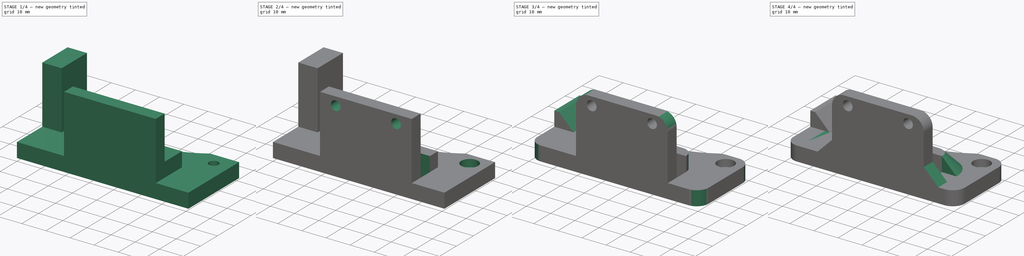
[diagram: build sequence overview — one tinted view per stage of 4, left to right]
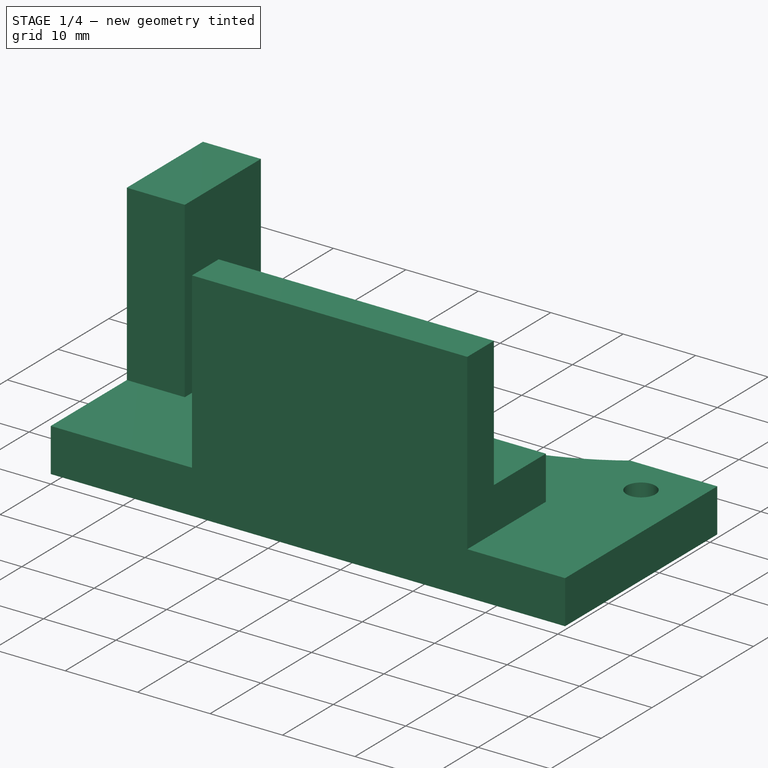
[diagram: stage 1 of 4 — iso view after this stage's code; geometry added in this stage tinted green]
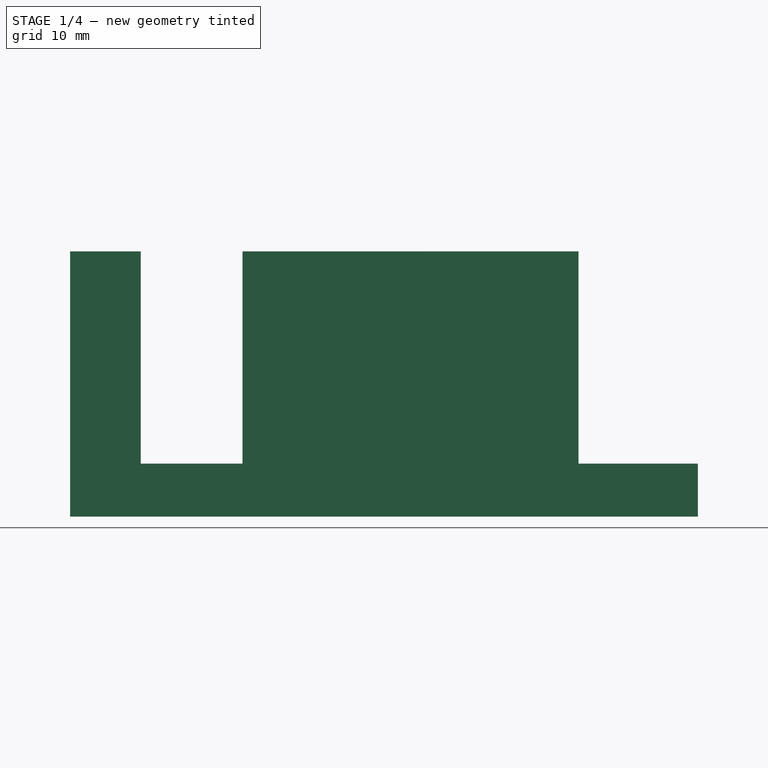
[diagram: stage 1 of 4 — front view after this stage's code; geometry added in this stage tinted green]
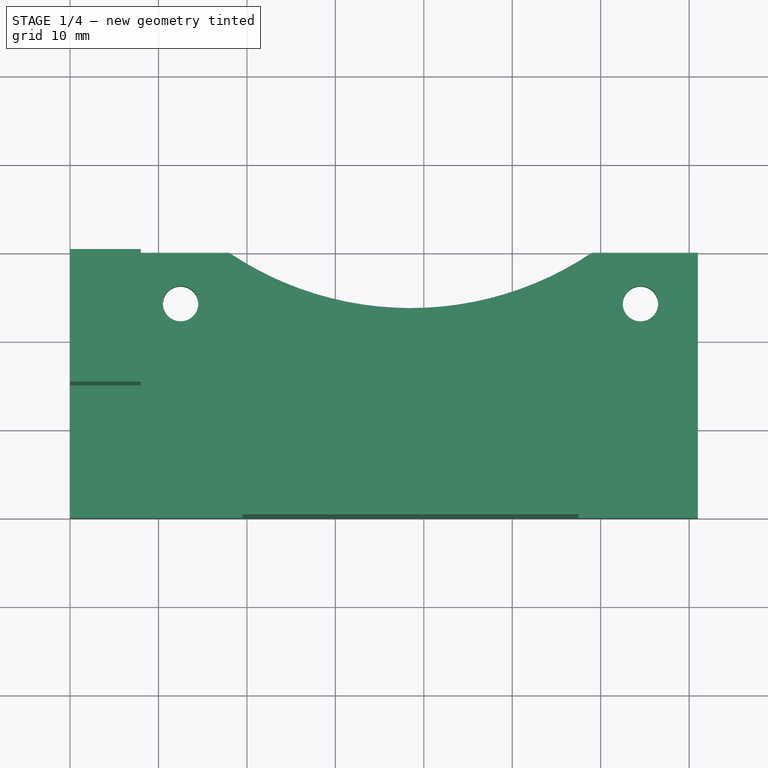
[diagram: stage 1 of 4 — top view after this stage's code; geometry added in this stage tinted green]
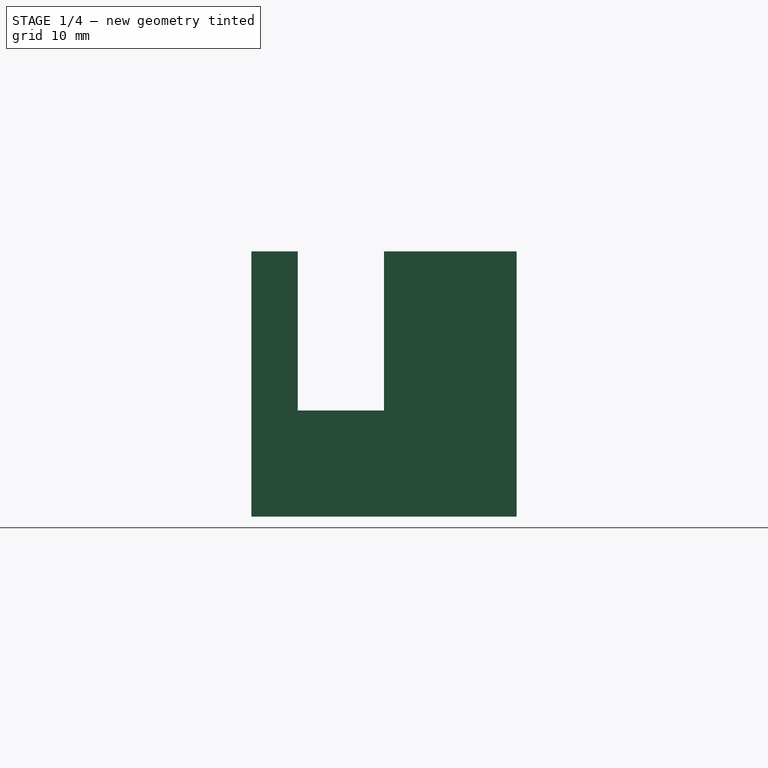
[diagram: stage 1 of 4 — right view after this stage's code; geometry added in this stage tinted green]
FCSTD DOCUMENT  (FreeCAD 0.17R13662 (Git))
Label: y_belt_mount
License: CreativeCommons Attribution-ShareAlike
LicenseURL: http://creativecommons.org/licenses/by-sa/4.0/
objects: Sketcher::SketchObject×8, PartDesign::Pocket×6, PartDesign::Fillet×2, PartDesign::Chamfer×2, Part::FeaturePython×1, PartDesign::Pad×1, PartDesign::Body×1
note: 28 computed .brp shape members not serialized (recipe doc carries the construction recipe); baked Part::Feature solids carry a one-line shape summary decoded from their .brp

FEATURE [Sketcher::SketchObject] Sketch
  MapMode = 5
  Support = -> [XY_Plane]
  sketch-geometry (10):
    g0: LineSegment StartX=71 StartY=0 StartZ=0 EndX=71 EndY=30 EndZ=0
    g1: LineSegment StartX=71 StartY=30 StartZ=0 EndX=59 EndY=30 EndZ=0
    g2: LineSegment [constr] StartX=59 StartY=30 StartZ=0 EndX=18 EndY=30 EndZ=0
    g3: LineSegment StartX=18 StartY=30 StartZ=0 EndX=0 EndY=30 EndZ=0
    g4: LineSegment StartX=0 StartY=30 StartZ=0 EndX=0 EndY=0 EndZ=0
    g5: LineSegment StartX=0 StartY=0 StartZ=0 EndX=71 EndY=0 EndZ=0
    g6: ArcOfCircle CenterX=38.5 CenterY=60.501 CenterZ=0 NormalX=0 NormalY=0 NormalZ=1 AngleXU=0 Radius=36.75 StartAngle=4.12063 EndAngle=5.30415
    g7: Circle CenterX=12.5 CenterY=24.25 CenterZ=0 NormalX=0 NormalY=0 NormalZ=1 AngleXU=0 Radius=2
    g8: Circle CenterX=64.5 CenterY=24.25 CenterZ=0 NormalX=0 NormalY=0 NormalZ=1 AngleXU=0 Radius=2
    g9: LineSegment [constr] StartX=12.5 StartY=24.25 StartZ=0 EndX=64.5 EndY=24.25 EndZ=0
  constraints (29):
    c: Coincident(g0,g1)
    c: Coincident(g1,g2)
    c: Coincident(g2,g3)
    c: Coincident(g4,g5)
    c: Coincident(g0,g5)
    c: Coincident(g4,g-1)
    c: Vertical(g4)
    c: Vertical(g0)
    c: Horizontal(g5)
    c: Horizontal(g1)
    c: Horizontal(g2)
    c: Horizontal(g3)
    c: DistanceX(g5,g5) = 71
    c: DistanceX(g1,g1) = 12
    c: Coincident(g1,g6)
    c: Coincident(g2,g6)
    c: Radius(g6) = 36.75
    c: DistanceY(g0,g0) = 30
    c: Equal(g4,g0)
    c: Coincident(g3,g4)
    c: DistanceX(g2,g2) = 41
    c: DistanceX(g7) = 12.5
    c: DistanceY(g7) = 24.25
    c: Coincident(g8,g9)
    c: Coincident(g7,g9)
    c: Horizontal(g9)
    c: DistanceX(g9,g9) = 52
    c: Equal(g7,g8)
    c: Radius(g8) = 2
FEATURE [PartDesign::Pad] Pad
  Length = 30
  Length2 = 100
  Profile = -> Sketch
  Type = 0
FEATURE [Sketcher::SketchObject] Sketch001
  MapMode = 5
  Placement = pos=(0,0,30) rot=(0,0,1;0rad)
  Support = -> [Pad]
  sketch-geometry (10):
    g0: LineSegment StartX=8 StartY=30 StartZ=0 EndX=71 EndY=30 EndZ=0
    g1: LineSegment StartX=71 StartY=30 StartZ=0 EndX=71 EndY=0 EndZ=0
    g2: LineSegment StartX=71 StartY=0 StartZ=0 EndX=57.5 EndY=0 EndZ=0
    g3: LineSegment StartX=19.5 StartY=0 StartZ=0 EndX=0 EndY=0 EndZ=0
    g4: LineSegment StartX=8 StartY=30 StartZ=0 EndX=8 EndY=15 EndZ=0
    g5: LineSegment StartX=8 StartY=15 StartZ=0 EndX=0 EndY=15 EndZ=0
    g6: LineSegment StartX=0 StartY=15 StartZ=0 EndX=0 EndY=0 EndZ=0
    g7: LineSegment StartX=19.5 StartY=0 StartZ=0 EndX=19.5 EndY=15.5 EndZ=0
    g8: LineSegment StartX=19.5 StartY=15.5 StartZ=0 EndX=57.5 EndY=15.5 EndZ=0
    g9: LineSegment StartX=57.5 StartY=15.5 StartZ=0 EndX=57.5 EndY=0 EndZ=0
  constraints (29):
    c: Coincident(g0,g1)
    c: Coincident(g1,g2)
    c: Horizontal(g3)
    c: Horizontal(g2)
    c: Horizontal(g0)
    c: Vertical(g1)
    c: DistanceX(g0) = 71
    c: DistanceY(g0) = 30
    c: Coincident(g4,g5)
    c: Coincident(g5,g6)
    c: Coincident(g3,g6)
    c: Coincident(g3,g-1)
    c: Vertical(g6)
    c: Vertical(g4)
    c: Horizontal(g5)
    c: DistanceY(g6,g6) = 15
    c: DistanceX(g5,g5) = 8
    c: Coincident(g0,g4)
    c: DistanceX(g3,g3) = 19.5
    c: PointOnObject(g1,g-1)
    c: DistanceX(g2,g2) = 13.5
    c: Coincident(g7,g8)
    c: Coincident(g8,g9)
    c: Coincident(g2,g9)
    c: Coincident(g3,g7)
    c: Vertical(g9)
    c: Vertical(g7)
    c: Horizontal(g8)
    c: DistanceY(g7,g7) = 15.5
FEATURE [PartDesign::Pocket] Pocket
  BaseFeature = -> Pad
  Length = 24
  Length2 = 100
  Profile = -> Sketch001
  Type = 0
FEATURE [Sketcher::SketchObject] Sketch003
  MapMode = 5
  Placement = pos=(0,0,30) rot=(0,0,1;0rad)
  Support = -> [Pocket]
  sketch-geometry (4):
    g0: LineSegment StartX=13.5 StartY=21 StartZ=0 EndX=63.5 EndY=21 EndZ=0
    g1: LineSegment StartX=63.5 StartY=21 StartZ=0 EndX=63.5 EndY=5.25 EndZ=0
    g2: LineSegment StartX=63.5 StartY=5.25 StartZ=0 EndX=13.5 EndY=5.25 EndZ=0
    g3: LineSegment StartX=13.5 StartY=5.25 StartZ=0 EndX=13.5 EndY=21 EndZ=0
  constraints (12):
    c: Coincident(g0,g1)
    c: Coincident(g1,g2)
    c: Coincident(g2,g3)
    c: Coincident(g3,g0)
    c: Horizontal(g0)
    c: Horizontal(g2)
    c: Vertical(g1)
    c: Vertical(g3)
    c: DistanceX(g2) = 13.5
    c: DistanceY(g2) = 5.25
    c: DistanceY(g3,g3) = 15.75
    c: DistanceX(g0,g0) = 50
FEATURE [PartDesign::Pocket] Pocket001
  BaseFeature = -> Pocket
  Length = 18
  Length2 = 100
  Profile = -> Sketch003
  Type = 0
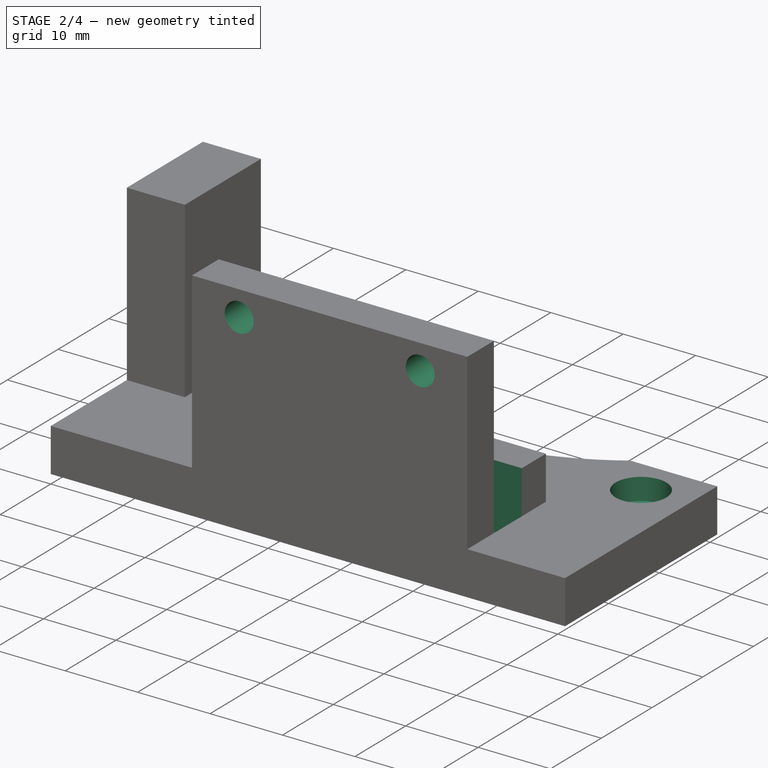
[diagram: stage 2 of 4 — iso view after this stage's code; geometry added in this stage tinted green]
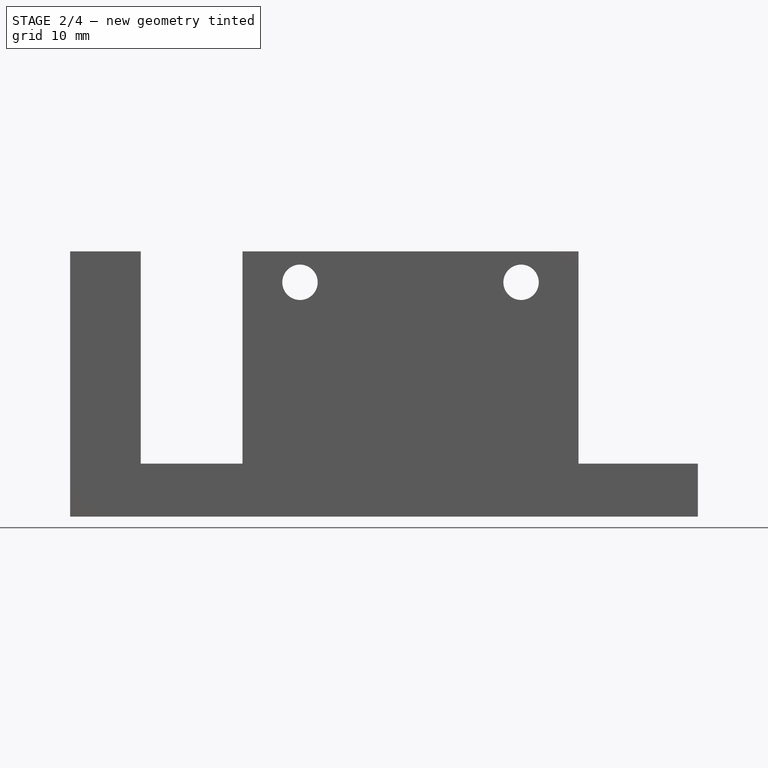
[diagram: stage 2 of 4 — front view after this stage's code; geometry added in this stage tinted green]
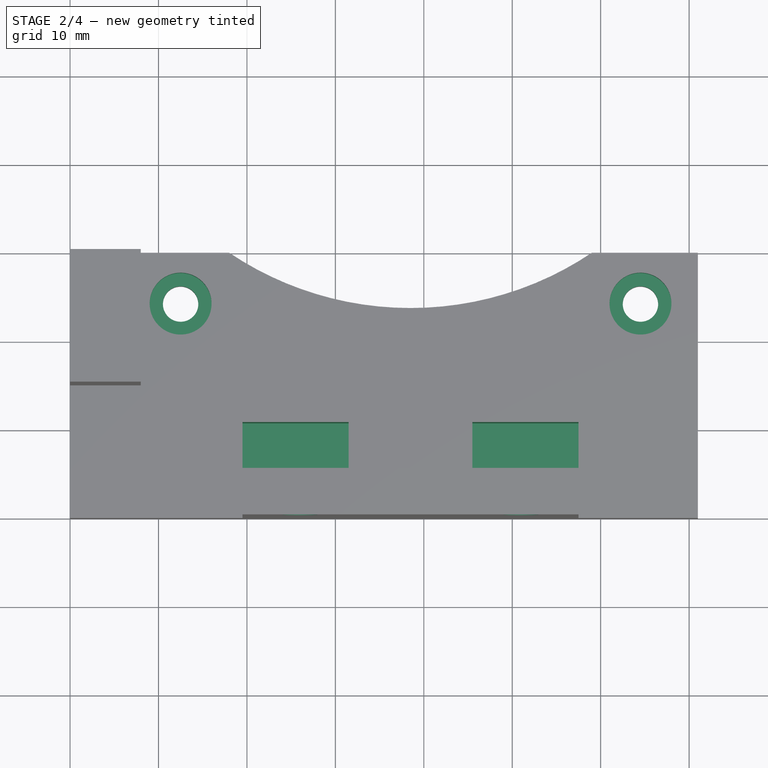
[diagram: stage 2 of 4 — top view after this stage's code; geometry added in this stage tinted green]
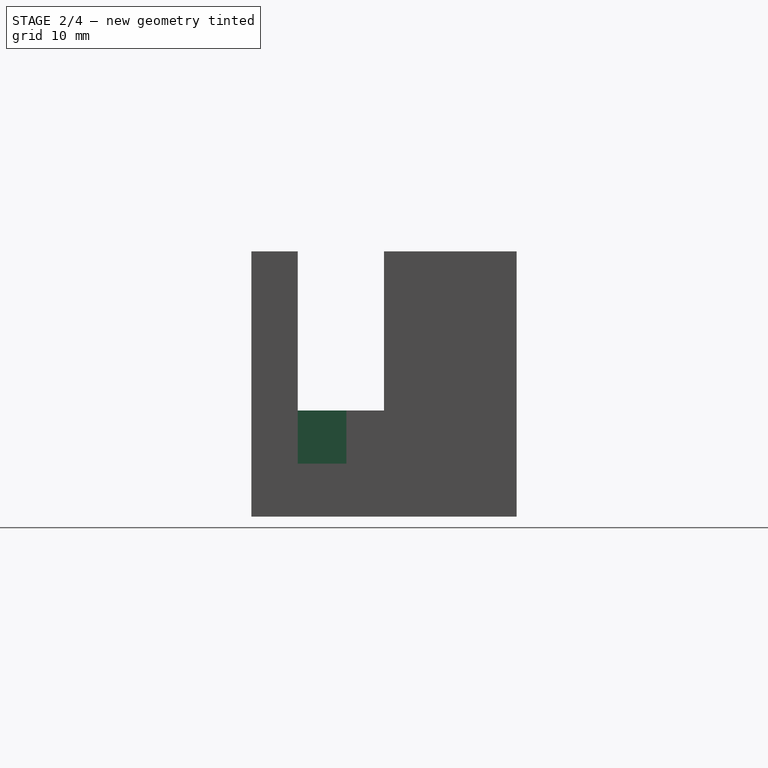
[diagram: stage 2 of 4 — right view after this stage's code; geometry added in this stage tinted green]
FEATURE [Sketcher::SketchObject] Sketch002
  MapMode = 5
  Placement = pos=(0,0,12) rot=(0,0,1;0rad)
  Support = -> [Pocket001]
FEATURE [Sketcher::SketchObject] Sketch004
  MapMode = 5
  Placement = pos=(0,0,12) rot=(0,0,1;0rad)
  Support = -> [Pocket001]
  sketch-geometry (8):
    g0: LineSegment StartX=31.5 StartY=5.25 StartZ=0 EndX=19.5 EndY=5.25 EndZ=0
    g1: LineSegment StartX=19.5 StartY=5.25 StartZ=0 EndX=19.5 EndY=10.75 EndZ=0
    g2: LineSegment StartX=19.5 StartY=10.75 StartZ=0 EndX=31.5 EndY=10.75 EndZ=0
    g3: LineSegment StartX=31.5 StartY=10.75 StartZ=0 EndX=31.5 EndY=5.25 EndZ=0
    g4: LineSegment StartX=45.5 StartY=5.25 StartZ=0 EndX=57.5 EndY=5.25 EndZ=0
    g5: LineSegment StartX=57.5 StartY=5.25 StartZ=0 EndX=57.5 EndY=10.75 EndZ=0
    g6: LineSegment StartX=57.5 StartY=10.75 StartZ=0 EndX=45.5 EndY=10.75 EndZ=0
    g7: LineSegment StartX=45.5 StartY=10.75 StartZ=0 EndX=45.5 EndY=5.25 EndZ=0
  constraints (24):
    c: Coincident(g0,g1)
    c: Coincident(g1,g2)
    c: Coincident(g2,g3)
    c: Coincident(g3,g0)
    c: Horizontal(g0)
    c: Horizontal(g2)
    c: Vertical(g1)
    c: Vertical(g3)
    c: Coincident(g4,g5)
    c: Coincident(g5,g6)
    c: Coincident(g6,g7)
    c: Coincident(g7,g4)
    c: Horizontal(g4)
    c: Horizontal(g6)
    c: Vertical(g5)
    c: Vertical(g7)
    c: DistanceX(g0) = 19.5
    c: DistanceY(g0) = 5.25
    c: DistanceY(g1,g1) = 5.5
    c: DistanceX(g2,g2) = 12
    c: PointOnObject(g0,g4)
    c: DistanceX(g0,g4) = 14
    c: Equal(g7,g3)
    c: Equal(g6,g2)
FEATURE [PartDesign::Pocket] Pocket002
  BaseFeature = -> Pocket001
  Length = 9
  Length2 = 100
  Profile = -> Sketch004
  Type = 0
FEATURE [Sketcher::SketchObject] Sketch005
  MapMode = 5
  Placement = pos=(0,0,0) rot=(1,0,0;1.5708rad)
  Support = -> [Pocket002]
  sketch-geometry (3):
    g0: Circle CenterX=26 CenterY=26.5 CenterZ=0 NormalX=0 NormalY=0 NormalZ=1 AngleXU=0 Radius=2
    g1: LineSegment [constr] StartX=26 StartY=26.5 StartZ=0 EndX=51 EndY=26.5 EndZ=0
    g2: Circle CenterX=51 CenterY=26.5 CenterZ=0 NormalX=0 NormalY=0 NormalZ=1 AngleXU=0 Radius=2
  constraints (8):
    c: DistanceX(g0) = 26
    c: DistanceY(g0) = 26.5
    c: Coincident(g0,g1)
    c: Horizontal(g1)
    c: Coincident(g1,g2)
    c: DistanceX(g1,g1) = 25
    c: Radius(g2) = 2
    c: Equal(g2,g0)
FEATURE [PartDesign::Pocket] Pocket003
  BaseFeature = -> Pocket002
  Length = 5
  Length2 = 100
  Profile = -> Sketch005
  Type = 1
FEATURE [Sketcher::SketchObject] Sketch006
  MapMode = 5
  Placement = pos=(0,0,6) rot=(0,0,1;0rad)
  Support = -> [Pocket003]
  sketch-geometry (2):
    g0: Circle CenterX=12.5 CenterY=24.25 CenterZ=0 NormalX=0 NormalY=0 NormalZ=1 AngleXU=0 Radius=3.5
    g1: Circle CenterX=64.5 CenterY=24.25 CenterZ=0 NormalX=0 NormalY=0 NormalZ=1 AngleXU=0 Radius=3.5
  constraints (6):
    c: DistanceX(g1) = 64.5
    c: DistanceY(g1) = 24.25
    c: Radius(g1) = 3.5
    c: DistanceX(g0,g1) = 52
    c: DistanceY(g0,g1) = 0
    c: Equal(g0,g1)
FEATURE [PartDesign::Pocket] Pocket004
  BaseFeature = -> Pocket003
  Length = 3
  Length2 = 100
  Profile = -> Sketch006
  Type = 0
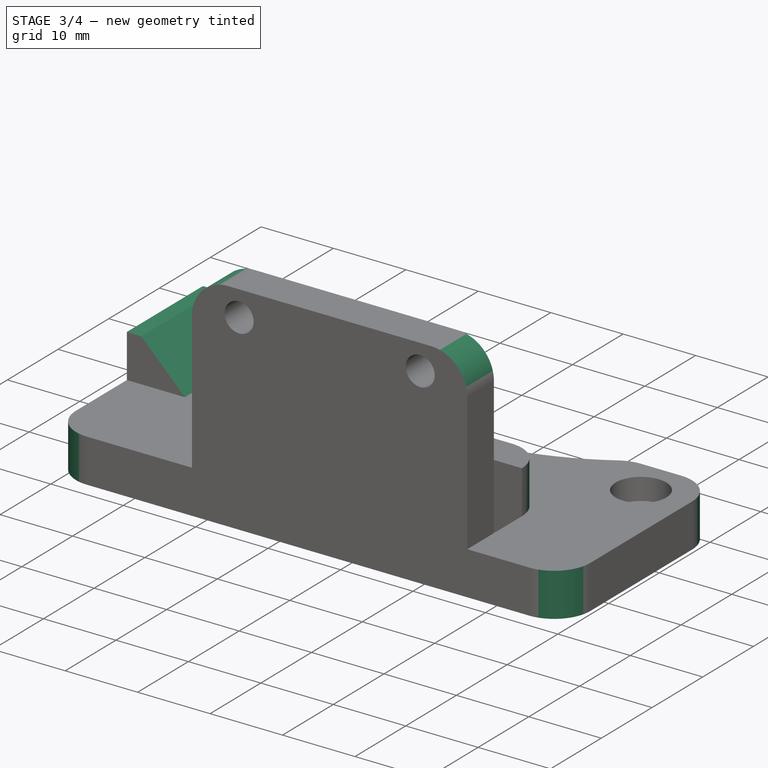
[diagram: stage 3 of 4 — iso view after this stage's code; geometry added in this stage tinted green]
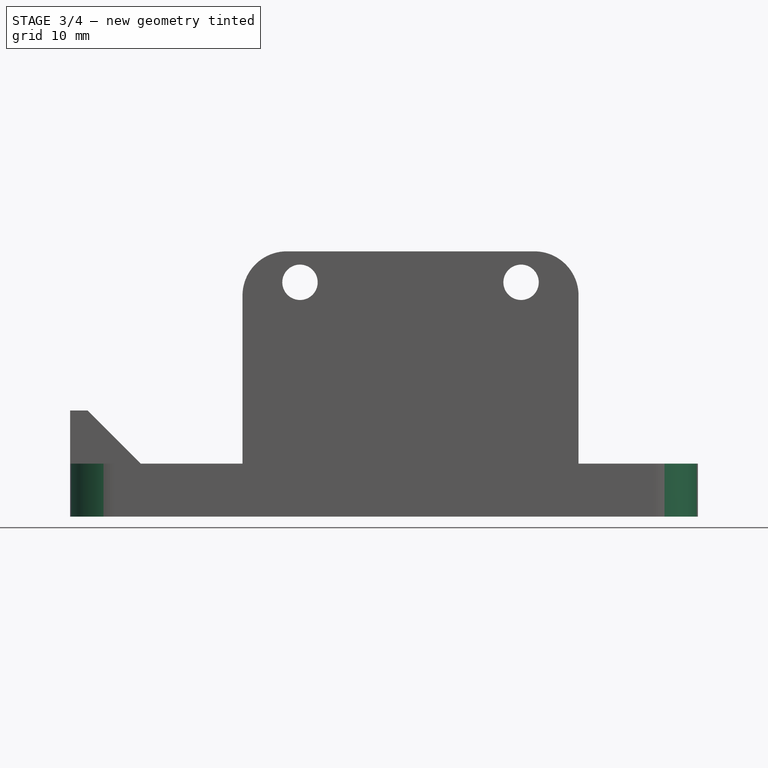
[diagram: stage 3 of 4 — front view after this stage's code; geometry added in this stage tinted green]
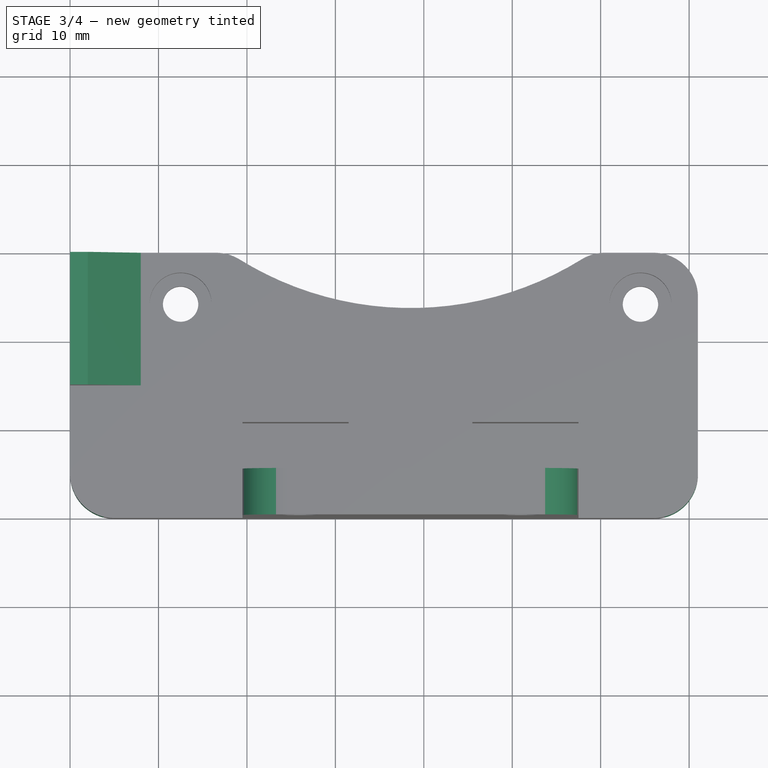
[diagram: stage 3 of 4 — top view after this stage's code; geometry added in this stage tinted green]
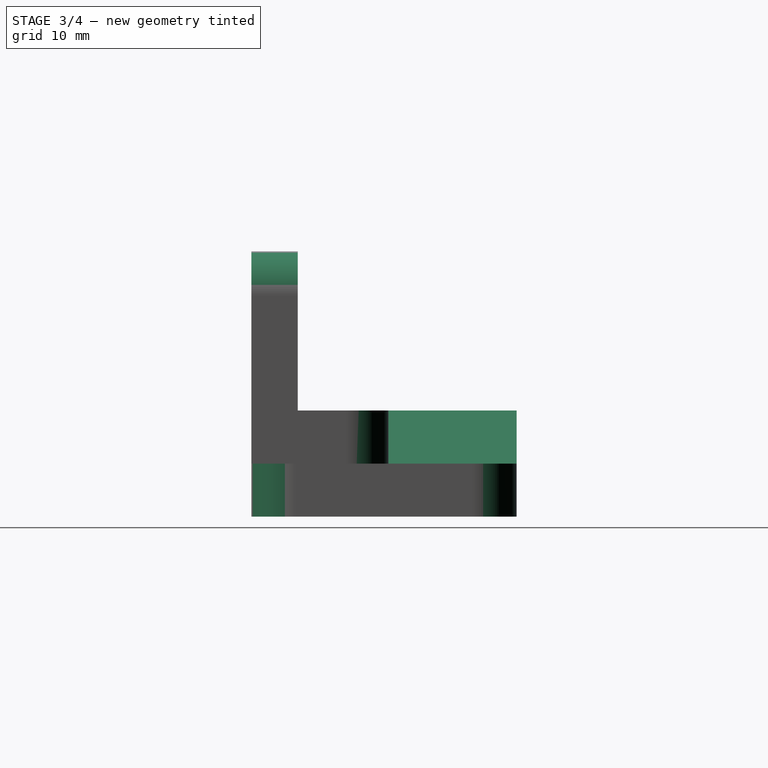
[diagram: stage 3 of 4 — right view after this stage's code; geometry added in this stage tinted green]
FEATURE [Sketcher::SketchObject] Sketch007
  MapMode = 5
  Placement = pos=(0,15,0) rot=(1,0,0;1.5708rad)
  Support = -> [Pocket004]
  sketch-geometry (5):
    g0: LineSegment StartX=8 StartY=6 StartZ=0 EndX=2 EndY=12 EndZ=0
    g1: LineSegment StartX=0 StartY=12 StartZ=0 EndX=0 EndY=30 EndZ=0
    g2: LineSegment StartX=0 StartY=30 StartZ=0 EndX=8 EndY=30 EndZ=0
    g3: LineSegment StartX=8 StartY=30 StartZ=0 EndX=8 EndY=6 EndZ=0
    g4: LineSegment StartX=2 StartY=12 StartZ=0 EndX=0 EndY=12 EndZ=0
  constraints (15):
    c: Coincident(g1,g2)
    c: Coincident(g2,g3)
    c: Coincident(g0,g3)
    c: Vertical(g3)
    c: Vertical(g1)
    c: Horizontal(g2)
    c: DistanceX(g0) = 8
    c: DistanceY(g0) = 6
    c: Angle(g0) = 2.35619
    c: DistanceY(g1,g1) = 18
    c: DistanceY(g0,g0) = 6
    c: Coincident(g0,g4)
    c: Coincident(g1,g4)
    c: Horizontal(g4)
    c: PointOnObject(g1,g-2)
FEATURE [PartDesign::Pocket] Pocket005
  BaseFeature = -> Pocket004
  Length = 5
  Length2 = 100
  Profile = -> Sketch007
  Type = 1
FEATURE [PartDesign::Fillet] Fillet
  Base = -> Pocket005 [Edge14,Edge38,Edge44,Edge6,Edge37,Edge49,Edge59]
  BaseFeature = -> Pocket005
  Radius = 5
FEATURE [PartDesign::Fillet] Fillet001
  Base = -> Fillet [Edge79,Edge73]
  BaseFeature = -> Fillet
  Radius = 4.74
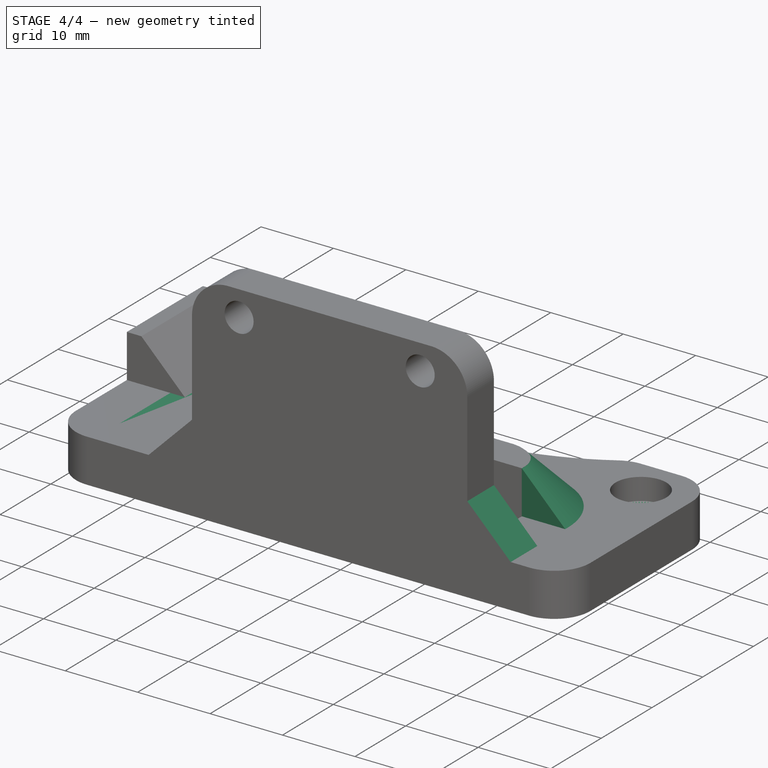
[diagram: stage 4 of 4 — iso view after this stage's code; geometry added in this stage tinted green]
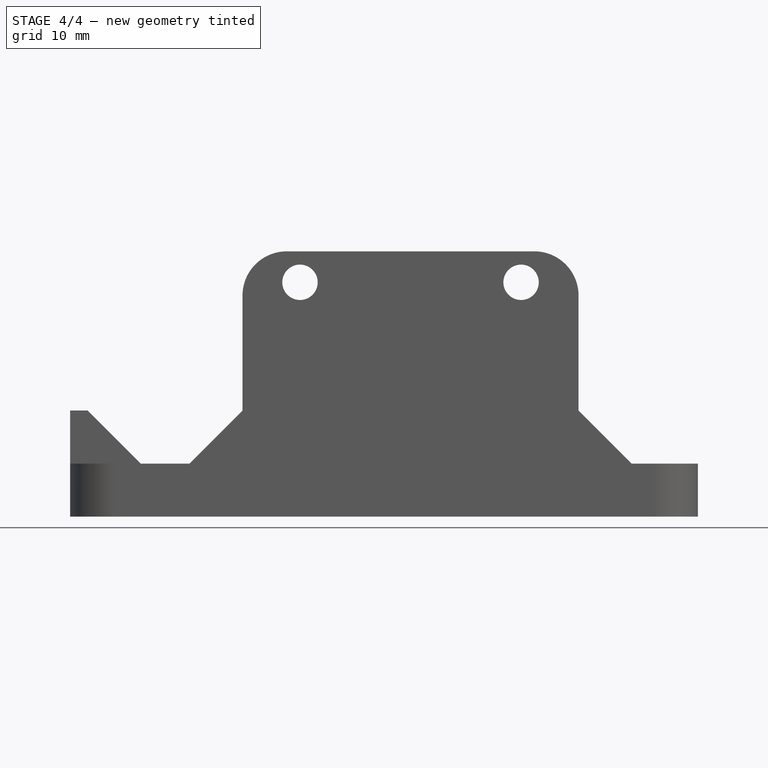
[diagram: stage 4 of 4 — front view after this stage's code; geometry added in this stage tinted green]
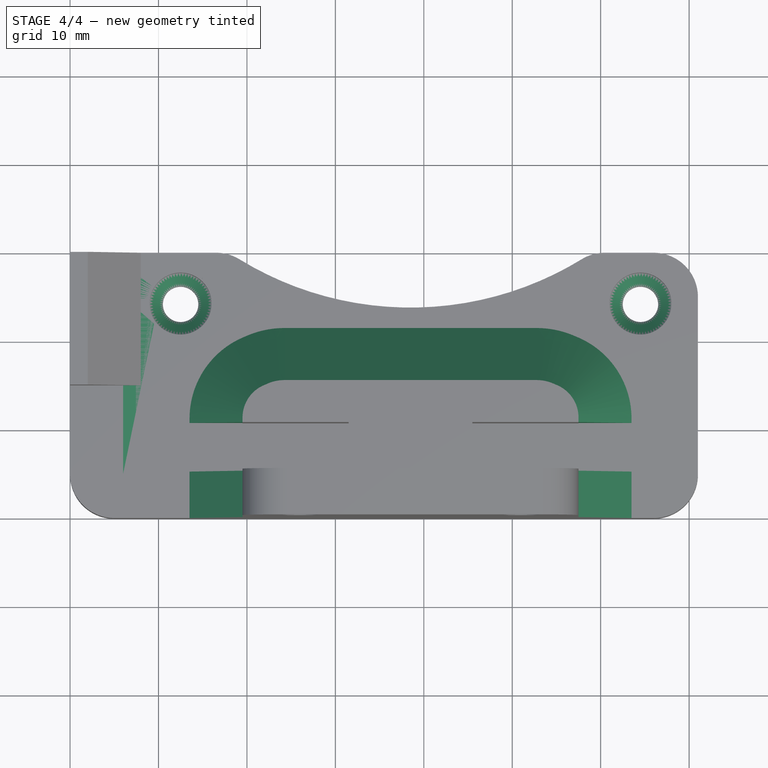
[diagram: stage 4 of 4 — top view after this stage's code; geometry added in this stage tinted green]
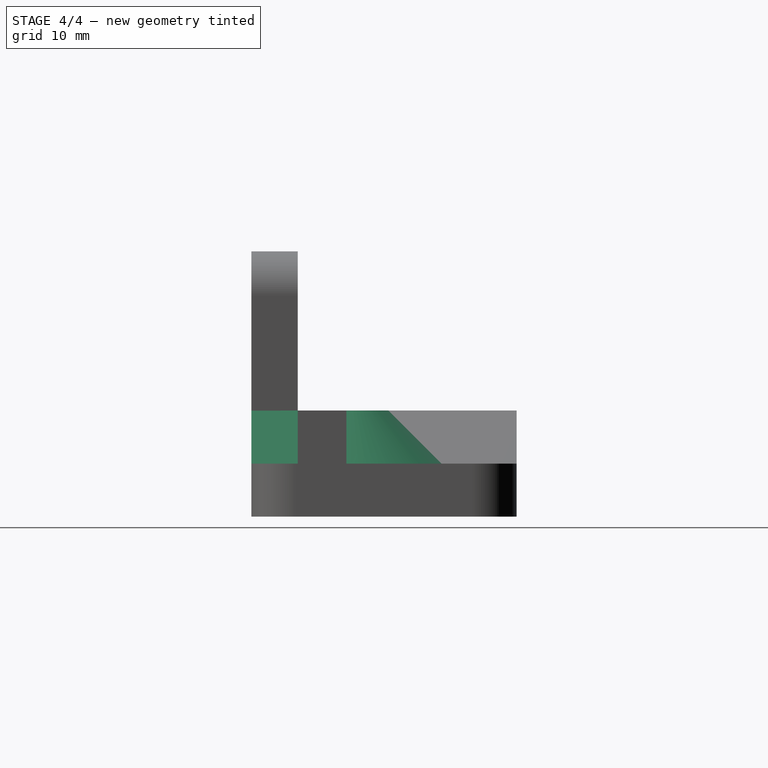
[diagram: stage 4 of 4 — right view after this stage's code; geometry added in this stage tinted green]
FEATURE [Part::FeaturePython] Y_belt_mount_01  # a2plus imported part (geometry in sourceFile) (typed FeaturePython)
  Placement = pos=(6,0,0) rot=(0,0,1;0rad)
  fixedPosition = true
  sourceFile = <userpath>/Projects/taz-quiver/production_parts/printed_parts/y_belt_mount/Y_belt_mount.fcstd
  timeLastImport = 1.54766e+09
  updateColors = true
FEATURE [PartDesign::Chamfer] Chamfer
  Base = -> Fillet001 [Edge6,Edge12,Edge5]
  BaseFeature = -> Fillet001
  Size = 5.99
FEATURE [PartDesign::Chamfer] Chamfer001
  Base = -> Chamfer [Edge139,Edge138]
  BaseFeature = -> Chamfer
  Size = 1.49
FEATURE [PartDesign::Body] Body
  Group = -> [Sketch,Pad,Sketch001,Pocket,Sketch002,Sketch003,Pocket001,Sketch004,Pocket002,Sketch005,Pocket003,Sketch006,Pocket004,Sketch007,Pocket005,Fillet,Fillet001,Chamfer,Chamfer001]
  Origin = -> Origin
  Tip = -> Chamfer001
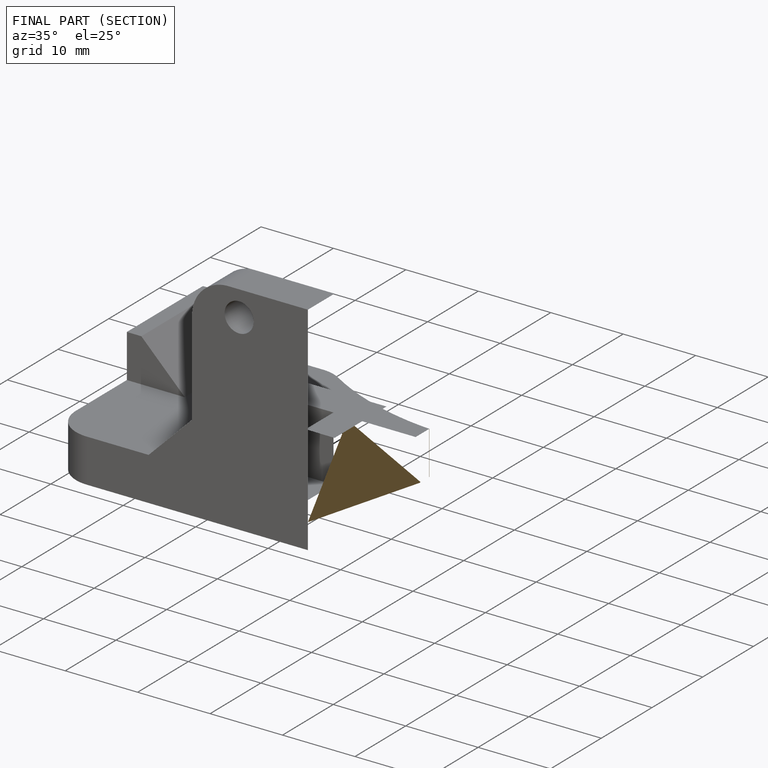
[diagram: finished part — half-section view (interior)]
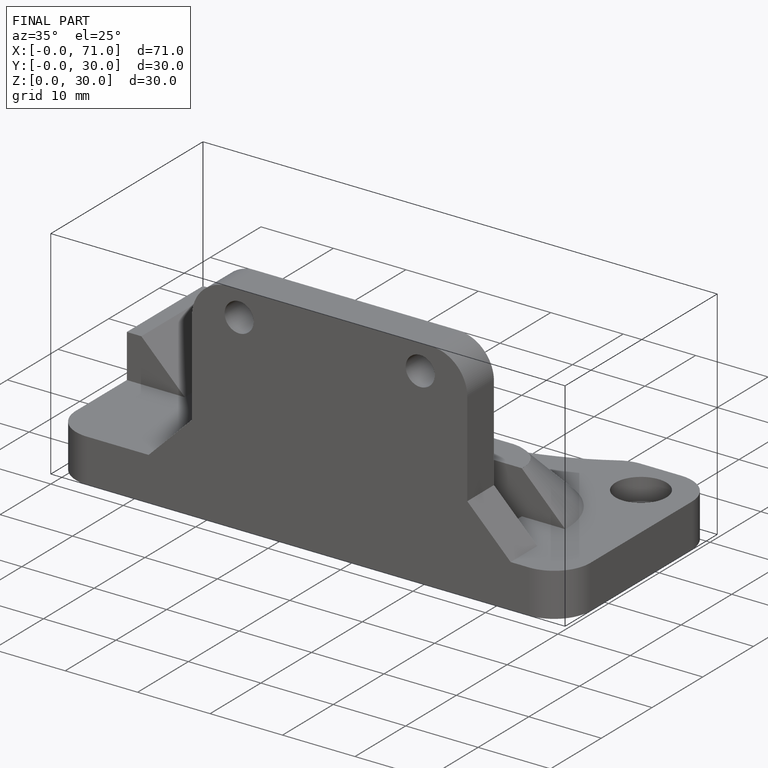
[diagram: finished part — iso view with bounding-box wireframe]
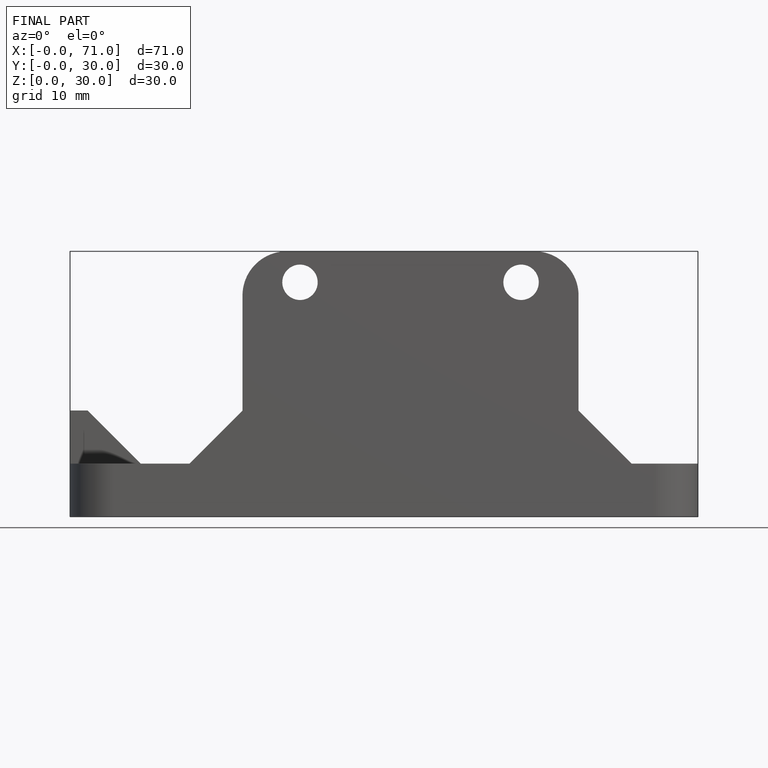
[diagram: finished part — front view with bounding-box wireframe]
